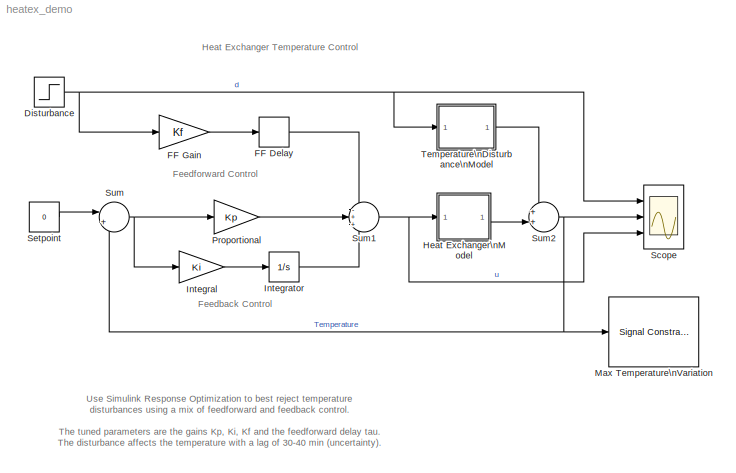
MODEL heatex_demo
KIND model
CONFIG PreLoadFcn = load heatex_demo
BLOCK [Step] Disturbance
  After = -1
  SampleTime = 0
  Time = 20
BLOCK [TransportDelay] FF Delay
  CloseFcn = disp('hello')
  DelayTime = tau
BLOCK [Gain] FF Gain
  CloseFcn = disp('hello')
  Gain = Kf
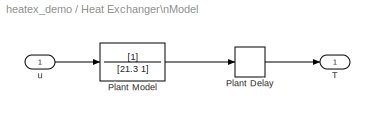
BLOCK [SubSystem] Heat Exchanger\nModel
  MinAlgLoopOccurrences = off
  Ports = [1, 1]
  PropExecContextAcrossSSBoundary = on
  RTWSystemCode = Auto
  TreatAsAtomicUnit = off
BLOCK [TransportDelay] Heat Exchanger\nModel/Plant Delay
  DelayTime = 15
BLOCK [TransferFcn] Heat Exchanger\nModel/Plant Model
  Denominator = [21.3 1]
BLOCK [Outport] Heat Exchanger\nModel/T
  BusOutputAsStruct = off
  IconDisplay = Port number
BLOCK [Inport] Heat Exchanger\nModel/u
  IconDisplay = Port number
  LatchInput = off
BLOCK [Gain] Integral
  Gain = Ki
BLOCK [Integrator] Integrator
  Ports = [1, 1]
BLOCK [Reference] Max Temperature\nVariation  REF=srolib/Signal Constraint  (lib defined in mdl_d992e5ea460a)
  DialogPosition = [0.046875 0.305833333333333 0.345625 0.245]
  LogID = SRO_DataLog_1
  Ports = [1]
  SaveAs = heatex_optim
  SaveIn = workspace
  ShowPortLabels = on
  SourceBlock = srolib/Signal Constraint
  SourceType = Signal Constraint
  Ylim = [-0.6 0.6]
BLOCK [Gain] Proportional
  Gain = Kp
BLOCK [Scope] Scope
  DataFormat = StructureWithTime
  NumInputPorts = 3
  Ports = [3]
  YMax = 1~1~1
  YMin = -1~-1~-1
BLOCK [Constant] Setpoint
  Value = 0
BLOCK [Sum] Sum
  IconShape = round
  Inputs = |+-
  Ports = [2, 1]
BLOCK [Sum] Sum1
  IconShape = round
  Inputs = -++
  Ports = [3, 1]
BLOCK [Sum] Sum2
  IconShape = round
  Inputs = ++|
  Ports = [2, 1]
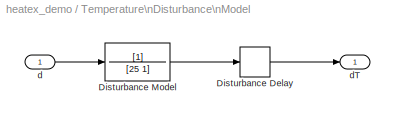
BLOCK [SubSystem] Temperature\nDisturbance\nModel
  MinAlgLoopOccurrences = off
  Ports = [1, 1]
  PropExecContextAcrossSSBoundary = on
  RTWSystemCode = Auto
  TreatAsAtomicUnit = off
BLOCK [TransportDelay] Temperature\nDisturbance\nModel/Disturbance Delay
  DelayTime = DDelay
BLOCK [TransferFcn] Temperature\nDisturbance\nModel/Disturbance Model
  Denominator = [25 1]
BLOCK [Inport] Temperature\nDisturbance\nModel/d
  IconDisplay = Port number
  LatchInput = off
BLOCK [Outport] Temperature\nDisturbance\nModel/dT
  BusOutputAsStruct = off
  IconDisplay = Port number
ANNOTATION (root): Feedback Control
ANNOTATION (root): Feedforward Control
ANNOTATION (root): Heat Exchanger Temperature Control
ANNOTATION (root): Use Simulink Response Optimization to best reject temperature \ndisturbances using a mix of feedforward and feedback control.\n\nThe tuned parameters are the gains Kp, Ki, Kf and the feedforward delay tau.\nThe disturbance affects the temperature with a lag of 30-40 min (uncertainty).\n\nDouble-click on the \"Max Temperature Variation\" block to see the\ndesired rejection properties and to start t...<+16ch>
NET Disturbance:1 -> FF Gain:1, Scope:1, Temperature\nDisturbance\nModel:1
LINE FF Delay:1 -> Sum1:1
LINE FF Gain:1 -> FF Delay:1
LINE Heat Exchanger\nModel/Plant Delay:1 -> Heat Exchanger\nModel/T:1
LINE Heat Exchanger\nModel/Plant Model:1 -> Heat Exchanger\nModel/Plant Delay:1
LINE Heat Exchanger\nModel/u:1 -> Heat Exchanger\nModel/Plant Model:1
LINE Heat Exchanger\nModel:1 -> Sum2:2
LINE Integral:1 -> Integrator:1
LINE Integrator:1 -> Sum1:3
LINE Proportional:1 -> Sum1:2
LINE Setpoint:1 -> Sum:1
NET Sum1:1 -> Heat Exchanger\nModel:1, Scope:3
NET Sum2:1 -> Max Temperature\nVariation:1, Scope:2, Sum:2
NET Sum:1 -> Integral:1, Proportional:1
LINE Temperature\nDisturbance\nModel/Disturbance Delay:1 -> Temperature\nDisturbance\nModel/dT:1
LINE Temperature\nDisturbance\nModel/Disturbance Model:1 -> Temperature\nDisturbance\nModel/Disturbance Delay:1
LINE Temperature\nDisturbance\nModel/d:1 -> Temperature\nDisturbance\nModel/Disturbance Model:1
LINE Temperature\nDisturbance\nModel:1 -> Sum2:1
note: NET lines group one-source signal fan-out (src -> all destinations, sorted); 1:1 wires keep LINE
